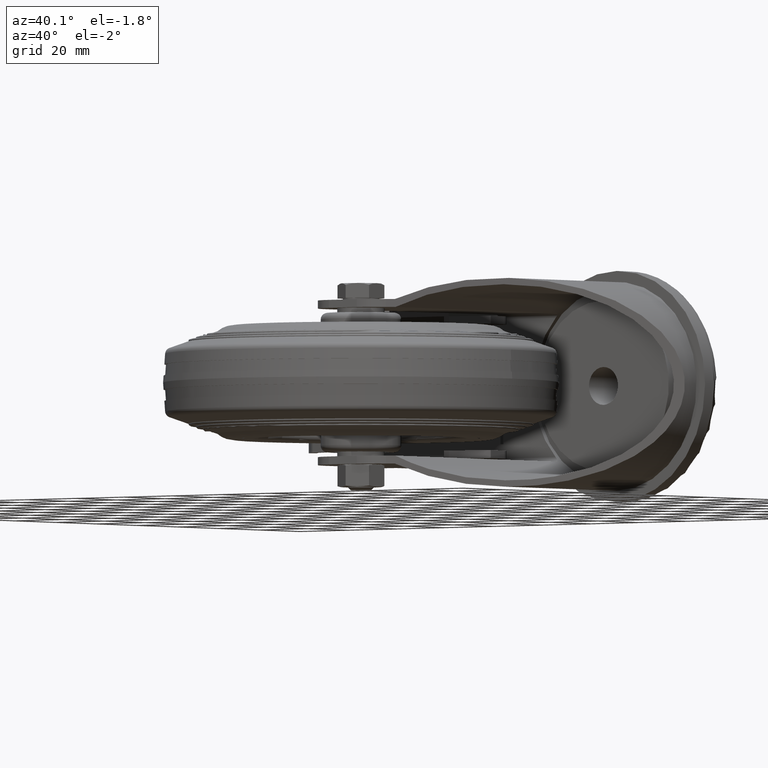
[diagram: clean part render]
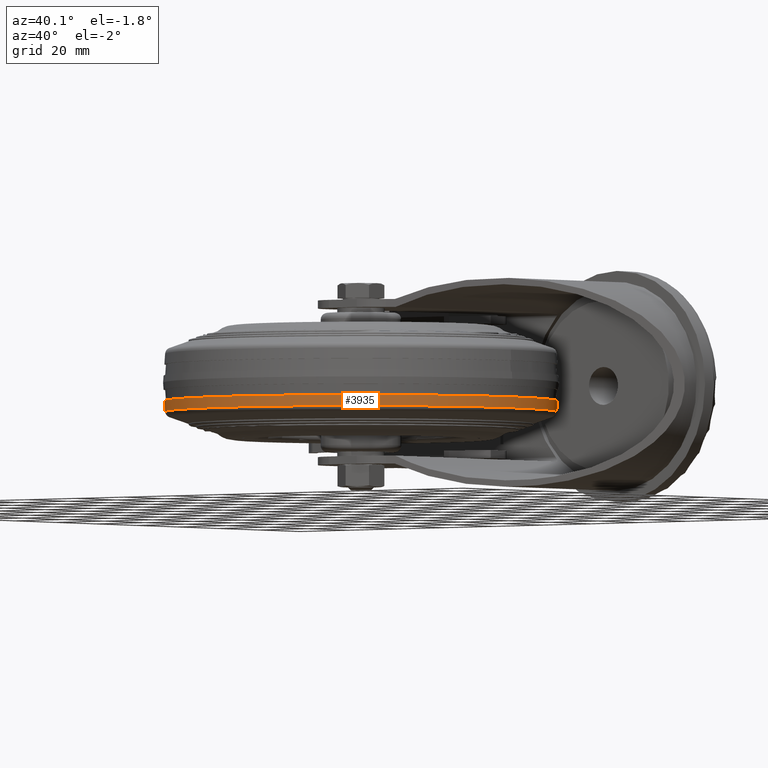
[diagram: same view with one face highlighted and labeled with its STEP entity id]
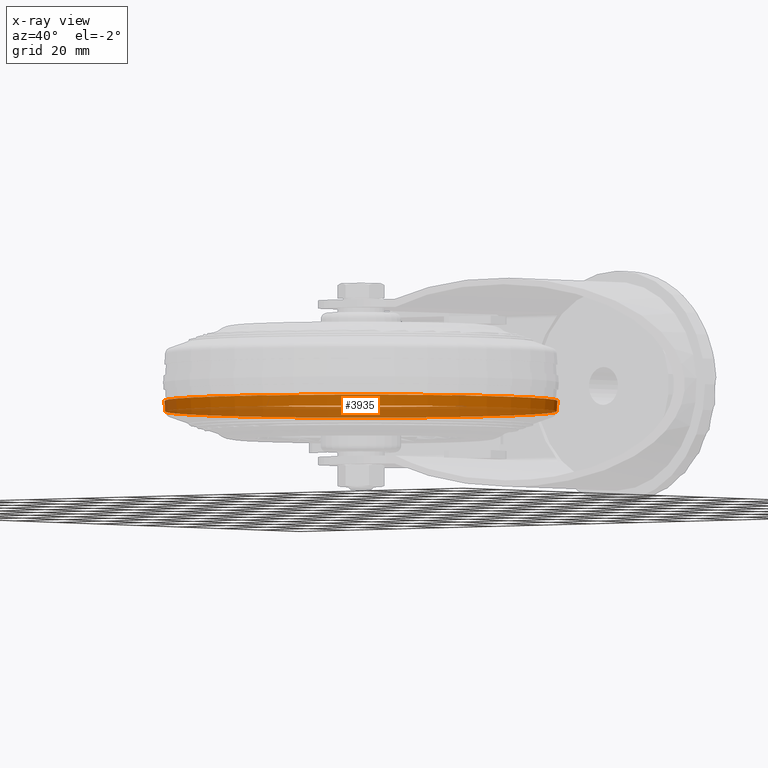
[diagram: x-ray of the same camera — body ghosted, the highlighted face saturated]
A machine part, auxiliary view. The second image highlights one B-rep face of the part: STEP entity #3935.
The next image is the same camera in x-ray: the body ghosted, the highlighted face saturated — about 45% of this face is hidden behind the body in this view.
In plain terms, the highlighted conical surface has half-angle 4 deg.
Its self-contained STEP definition (entity closure, byte-faithful):
#308=CONICAL_SURFACE('',#4541,62.0979208313248,0.0698131700797732);
#558=CIRCLE('',#4540,62.0979208313248);
#559=CIRCLE('',#4542,61.857908294494);
#800=FACE_OUTER_BOUND('',#1062,.T.);
#1062=EDGE_LOOP('',(#3515,#3516,#3517,#3518));
#1369=LINE('',#6931,#1654);
#1654=VECTOR('',#5652,62.0979208313248);
#1977=VERTEX_POINT('',#6927);
#1978=VERTEX_POINT('',#6930);
#2495=EDGE_CURVE('',#1977,#1977,#558,.T.);
#2496=EDGE_CURVE('',#1977,#1978,#1369,.T.);
#2497=EDGE_CURVE('',#1978,#1978,#559,.T.);
#3515=ORIENTED_EDGE('',*,*,#2495,.F.);
#3516=ORIENTED_EDGE('',*,*,#2496,.T.);
#3517=ORIENTED_EDGE('',*,*,#2497,.T.);
#3518=ORIENTED_EDGE('',*,*,#2496,.F.);
#3935=ADVANCED_FACE('',(#800),#308,.T.);
#4540=AXIS2_PLACEMENT_3D('',#6928,#5648,#5649);
#4541=AXIS2_PLACEMENT_3D('',#6929,#5650,#5651);
#4542=AXIS2_PLACEMENT_3D('',#6932,#5653,#5654);
#5648=DIRECTION('center_axis',(1.,0.,0.));
#5649=DIRECTION('ref_axis',(0.,0.,-1.));
#5650=DIRECTION('center_axis',(1.,0.,0.));
#5651=DIRECTION('ref_axis',(0.,0.,-1.));
#5652=DIRECTION('',(-0.997564050259824,8.54270422905495E-18,-0.0697564737441253));
#5653=DIRECTION('center_axis',(1.,0.,0.));
#5654=DIRECTION('ref_axis',(0.,0.,-1.));
#6927=CARTESIAN_POINT('',(16.25,-7.60480199797877E-15,62.0979208313248));
#6928=CARTESIAN_POINT('Origin',(16.25,0.,0.));
#6929=CARTESIAN_POINT('Origin',(16.25,0.,0.));
#6930=CARTESIAN_POINT('',(12.8176608133561,-7.57540893948026E-15,61.857908294494));
#6931=CARTESIAN_POINT('',(16.25,-7.60480199797877E-15,62.0979208313248));
#6932=CARTESIAN_POINT('Origin',(12.8176608133561,0.,0.));